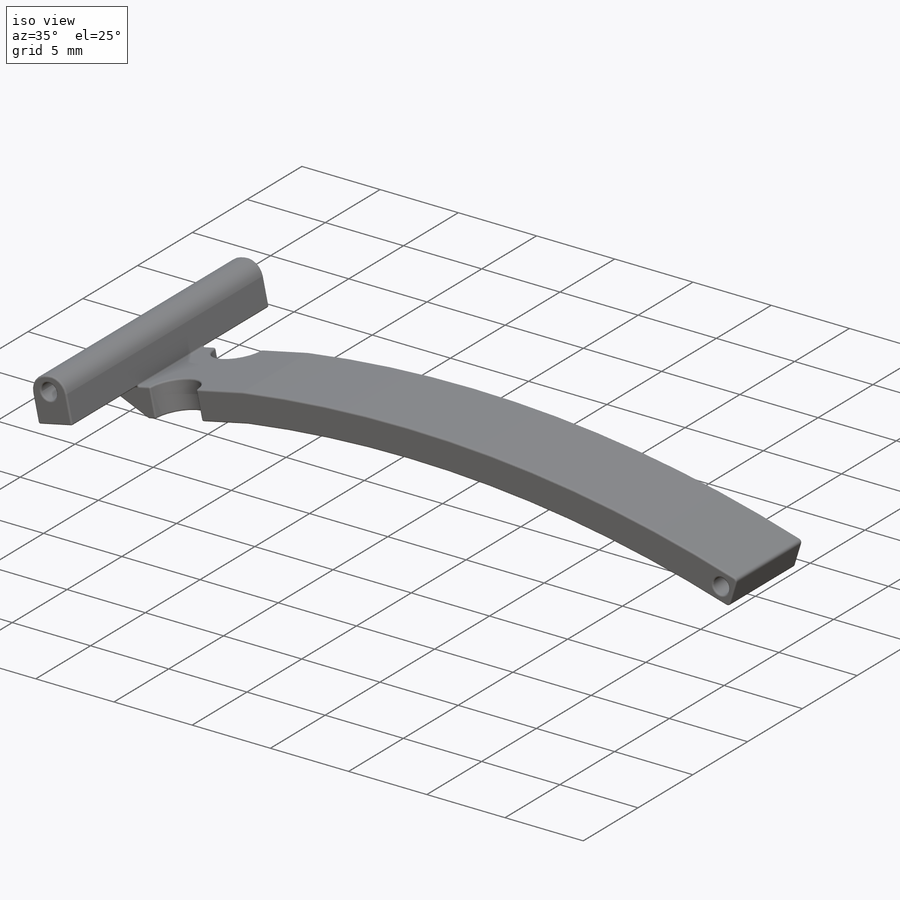
[diagram: iso view]
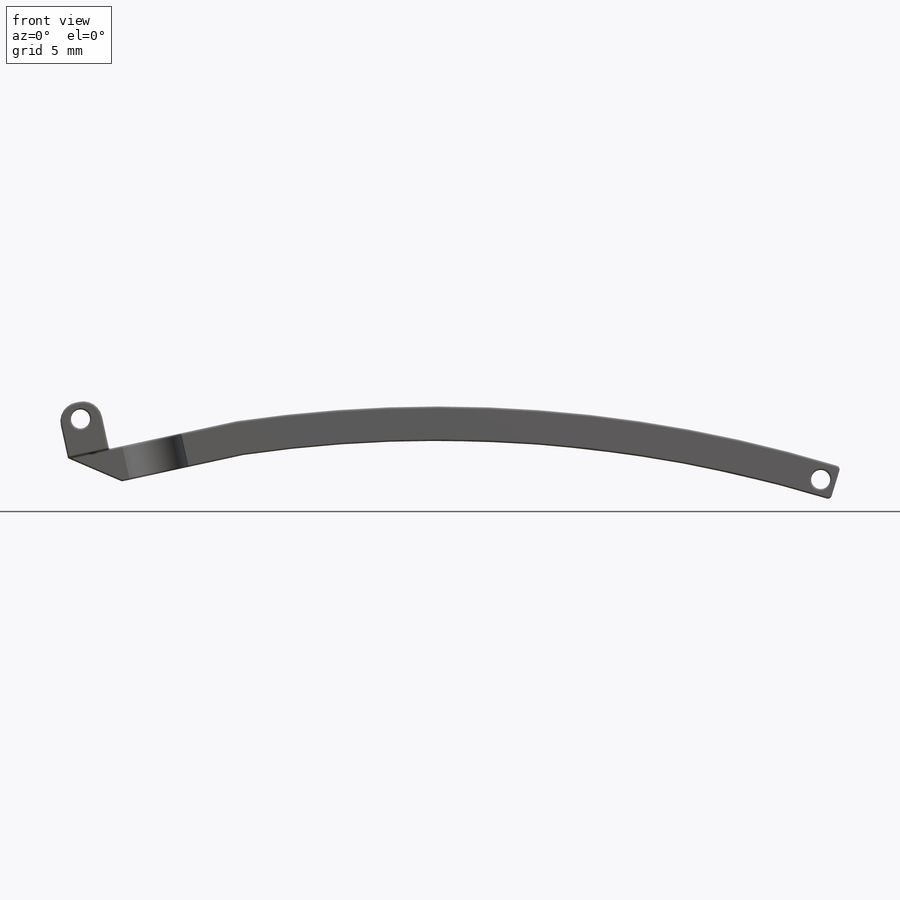
[diagram: front view]
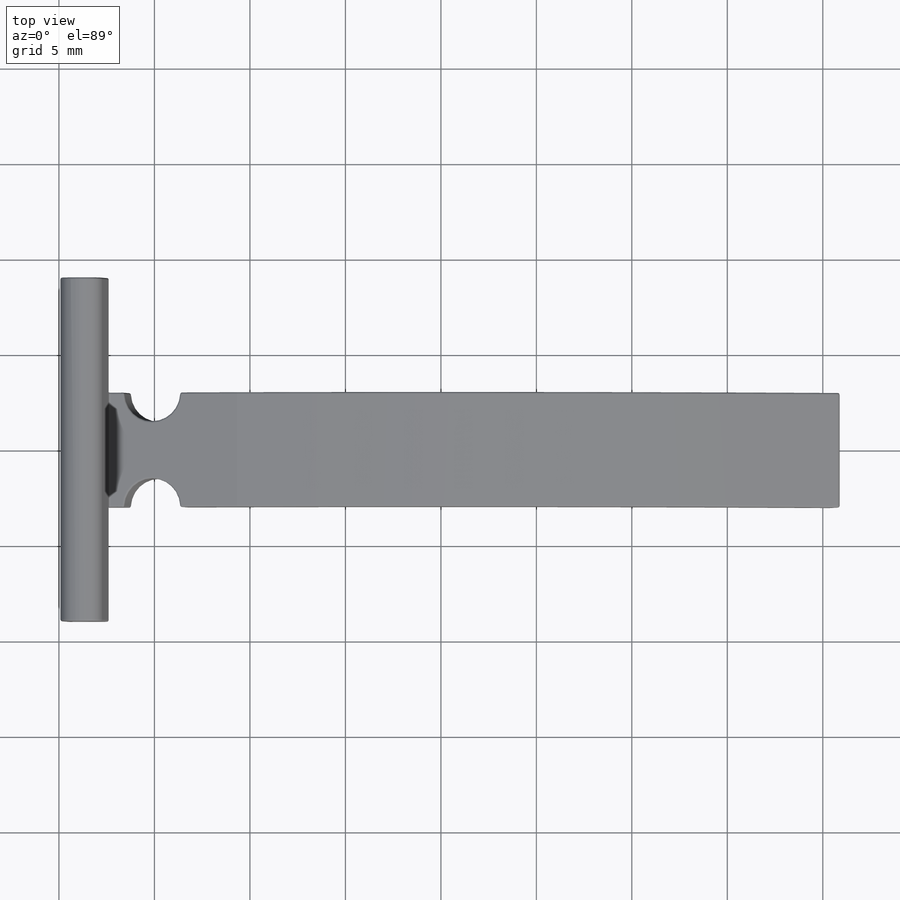
[diagram: top view]
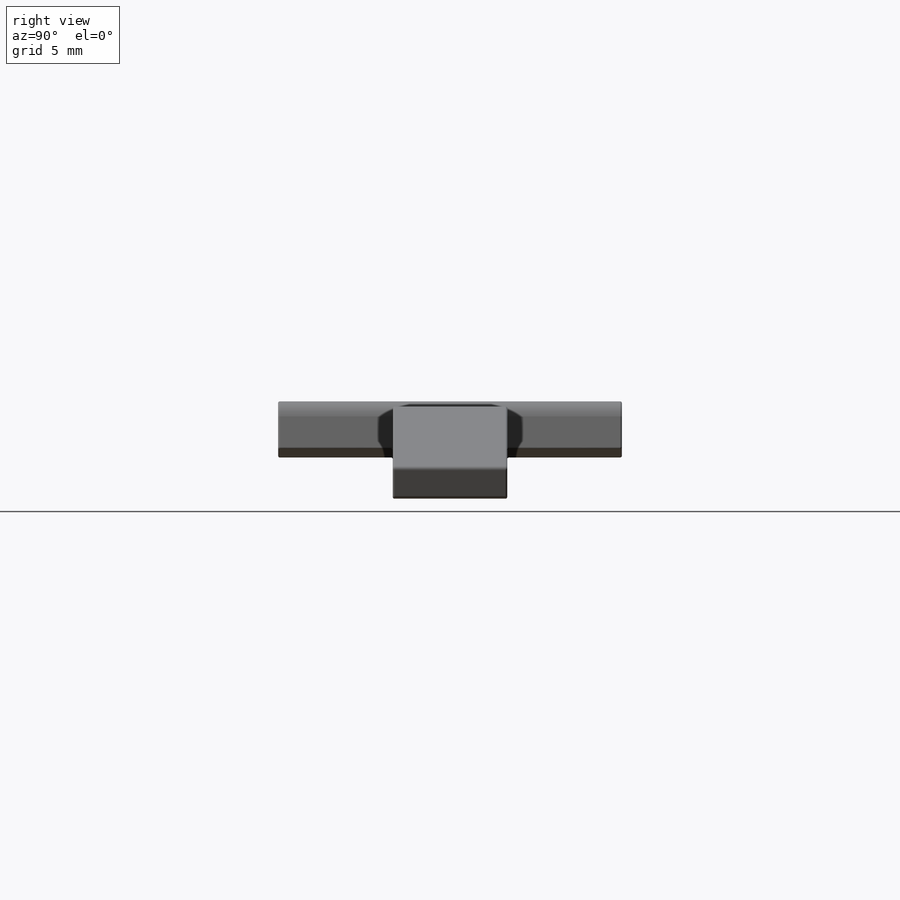
[diagram: right view]
SOLIDWORKS PART (.sldprt)
format: sldprt  version: not decoded by parser v0  size: 3,091,456 bytes
history: native  units: mm
features: sketch x18, fillet x15, cut_extrude x14, extrude x4, material x1, chamfer x1 (+11 scaffold rows collapsed)
feature tree (64):
  scaffold x11  (default folders/planes/origin — collapsed)
  material  "Material <not specified>"
  sketch  "Sketch1"  dims[D1=11.0mm D2=2.0mm]
  extrude  "Boss-Extrude1"  Depth=18mm
  sketch  "Sketch2"  dims[D1=0.0mm]
  cut_extrude  "Cut-Extrude1"  Depth=1mm
  fillet  "Fillet1"  Radius=1mm
  sketch  "Sketch3"  dims[D1=1.0mm D2=1.0mm D3=0.8mm]
  cut_extrude  "Cut-Extrude2"  Depth=21mm
  fillet  "Fillet2"  Radius=0.2mm
  sketch  "Sketch4"
  cut_extrude  "Cut-Extrude3"  Depth=4mm
  sketch  "Sketch5"  dims[D1=0.0mm]
  cut_extrude  "Cut-Extrude4"  Depth=4mm
  sketch  "Sketch6"  dims[D1=6.0mm D2=3.0mm]
  sketch  "Sketch7"
  extrude  "Boss-Extrude2"  Depth=9mm
  sketch  "Sketch9"  dims[D1=3.2mm D2=3.2mm]
  cut_extrude  "Cut-Extrude7"  Depth=59mm
  fillet  "Fillet3"  Radius=17mm
  fillet  "Fillet4"  Radius=5mm
  sketch  "Sketch10"
  cut_extrude  "Cut-Extrude8"  Depth=0.4mm
  sketch  "Sketch11"
  cut_extrude  "Cut-Extrude9"  Depth=0.4mm
  sketch  "Sketch12"
  cut_extrude  "Cut-Extrude10"  Depth=0.1mm
  fillet  "Fillet7"  Radius=0.02mm
  fillet  "Fillet8"  Radius=0.02mm
  sketch  "Sketch13"
  cut_extrude  "Cut-Extrude11"  Depth=0.03mm
  cut_extrude  "Cut-Extrude12"  Depth=50mm
  sketch  "Sketch14"
  cut_extrude  "Cut-Extrude13"  Depth=50mm
  sketch  "Sketch15"  dims[D1=2.2mm]
  extrude  "Boss-Extrude3"  Depth=2.75mm
  sketch  "Sketch16"  dims[D1=0.0mm]
  extrude  "Boss-Extrude4"  Depth=6mm
  fillet  "Fillet9"  Radius=1mm
  chamfer  "Chamfer1"  Distance=2.5mm Angle=35.5deg
  sketch  "Sketch17"  dims[c1.D1=3.0mm c1.D2=3.0mm c1.D4=3.0mm c1.D5=3.0mm c1.D6=3.0mm c1.D3=0.0mm c2.D4=0.0mm c2.D5=4.5mm c2.D6=4.5mm]
  cut_extrude  "Cut-Extrude14"  Depth=6mm
  sketch  "Sketch18"  dims[D1=1.0mm]
  cut_extrude  "Cut-Extrude15"  Depth=26mm
  fillet  "Fillet14"  Radius=0.1mm
  sketch  "Sketch19"
  cut_extrude  "Cut-Extrude16"  Depth=0.15mm
  fillet  "Fillet16"  Radius=0.02mm
  fillet  "Fillet17"  Radius=0.02mm
  fillet  "Fillet19"  Radius=0.02mm
  fillet  "Fillet20"  Radius=0.02mm
  fillet  "Fillet21"  Radius=0.02mm
  fillet  "Fillet22"  Radius=0.02mm
  fillet  "Fillet23"  Radius=0.02mm
decode coverage: 44 of 52 modeling features carry decoded parameters
note: suppression state not decoded; provenance and decode notes live in map.json
